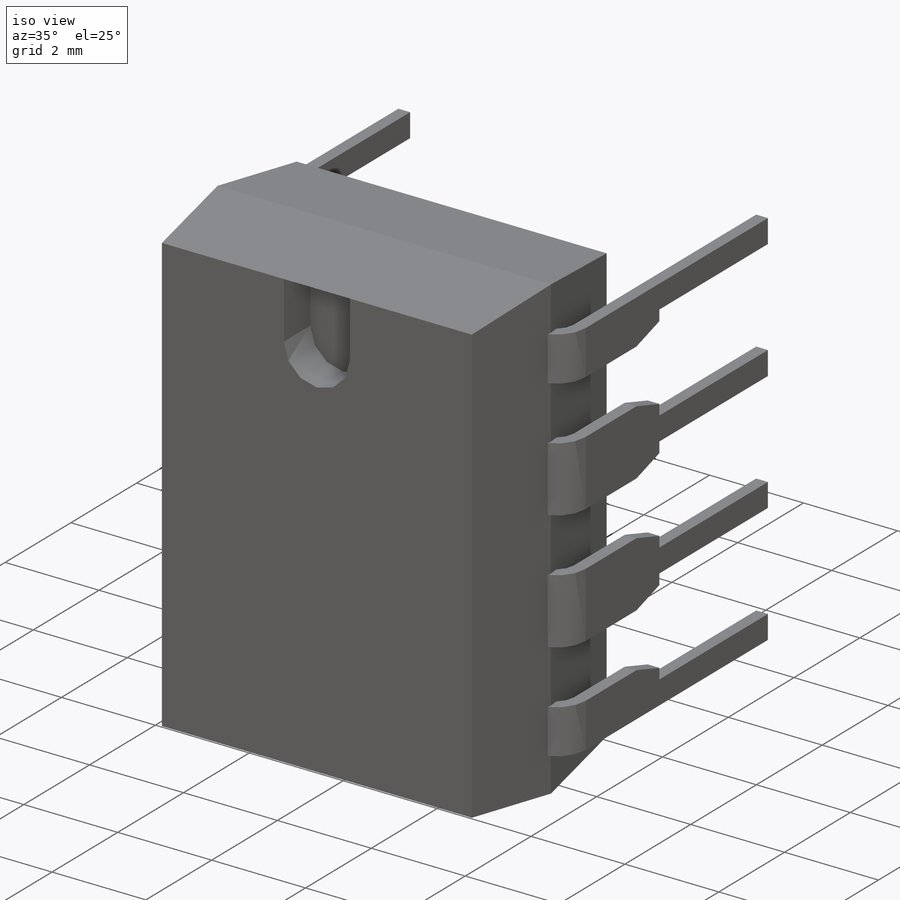
[diagram: iso view]
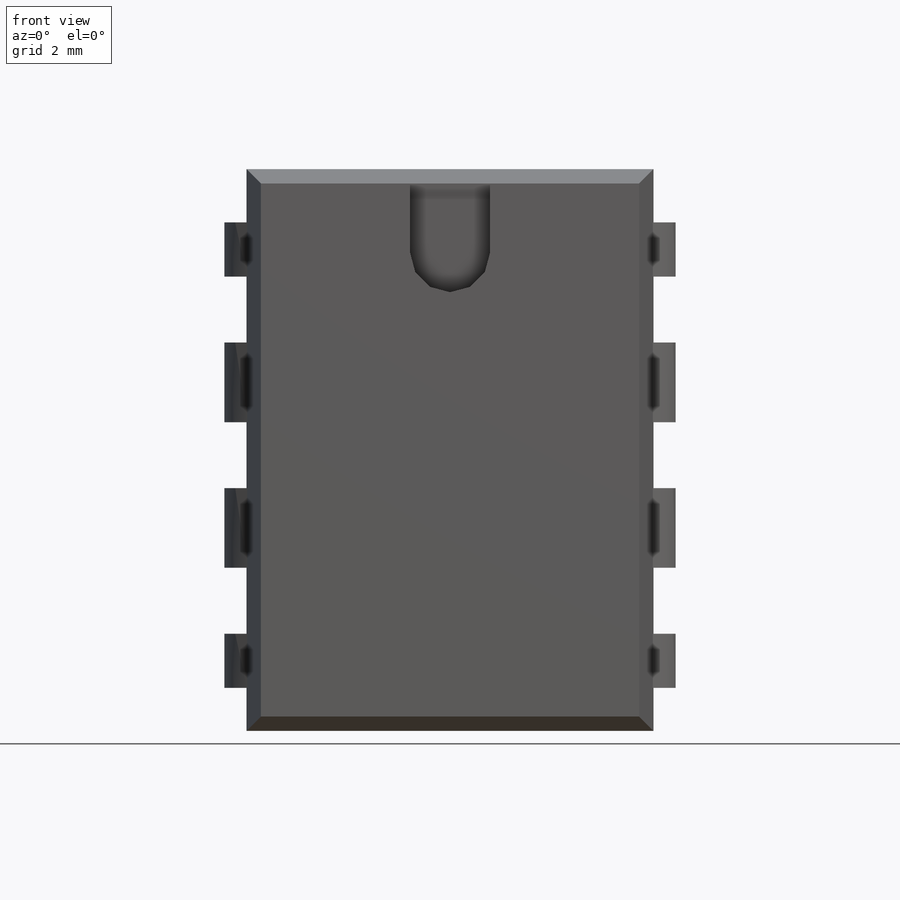
[diagram: front view]
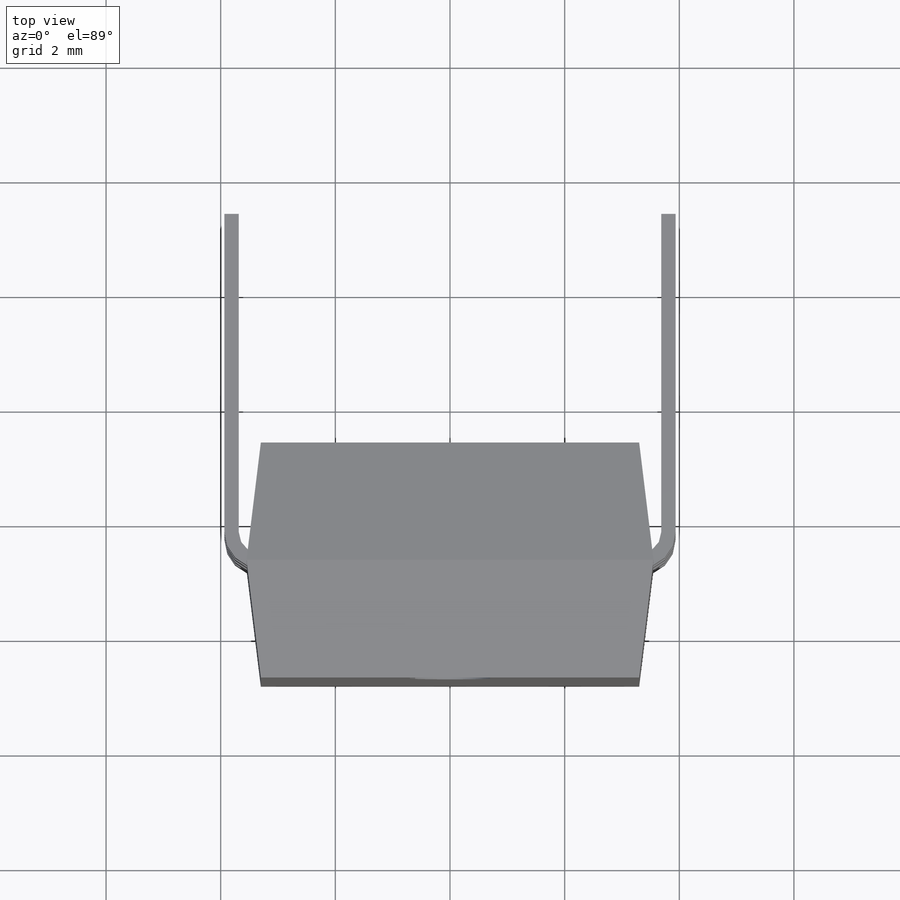
[diagram: top view]
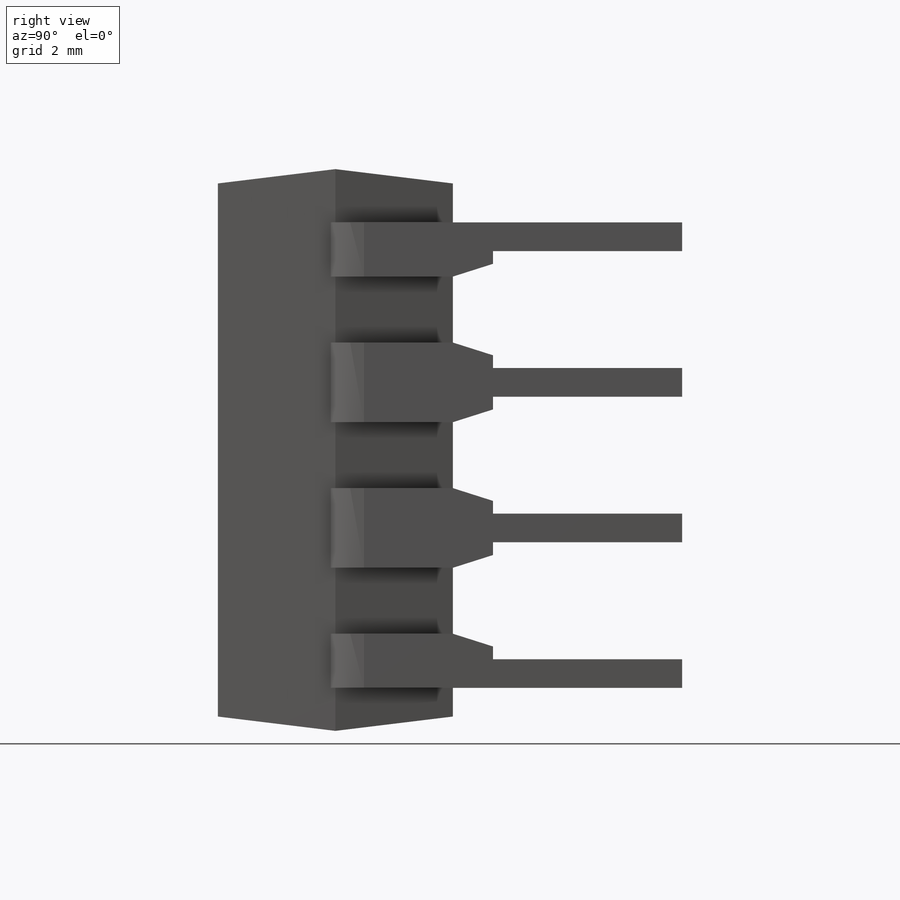
[diagram: right view]
SOLIDWORKS PART (.sldprt)
format: sldprt  version: not decoded by parser v0  size: 442,368 bytes
history: native  units: mm
features: sketch x11, cut_extrude x6, material x1, extrude x1, plane x1, sweep x1, mirror x1, pattern_linear x1 (+12 scaffold rows collapsed)
feature tree (35):
  scaffold x12  (default folders/planes/origin — collapsed)
  material  "Material <not specified>"
  sketch  "Sketch1"  dims[F=7.1mm i=4.8mm a1=0.7mm D4=6.6mm D1=0.7mm D2=4.8mm]
  extrude  "Basic Shape"  Depth=9.8mm D=9.8mm
  sketch  "Sketch2"  dims[D1=0.25mm]
  cut_extrude  "Side Profile1"  [1 undecoded]
  sketch  "Sketch3"
  cut_extrude  "Side Profile2"  [1 undecoded]
  sketch  "First Pin Location"  dims[Z=1.0mm]
  plane  "First Pin Plane"
  sketch  "Sketch4"  dims[c1.D1=1.4mm c1.D2=1.3mm c2.D1=1.2mm c2.D2=1.4mm]
  cut_extrude  "Location Mark"  Depth=0.8mm
  sketch  "Sketch5"  dims[c1.D3=0.5mm c1.D4=0.5mm c2.D3=0.5mm c2.D2=0.5mm c2.D1=8.5mm c3.D2=3.3mm c3.D1=7.62mm c4.D2=3.3mm c4.D3=3.3mm]
  sketch  "Sketch6"  dims[D1=1.39mm D2=0.25mm]
  sweep  "First Pin"
  sketch  "Sketch7"  dims[D1=0.5mm]
  cut_extrude  "Pin Relief"  [1 undecoded]
  mirror  "Opp Pin"
  pattern_linear  "Remaining Pins"  Count1=4 Count2=1 Spacing1=2.54mm Spacing2=50mm
  sketch  "Sketch9"  dims[D1=0.0mm D2=0.0mm]
  cut_extrude  "Pin Shape1"  [1 undecoded]
  sketch  "Sketch10"  dims[c1.D1=0.0mm c1.D2=0.0mm c2.D1=0.0mm c2.D2=0.0mm c3.D1=0.0mm c3.D3=0.0mm]
  cut_extrude  "Pin Shape2"  [1 undecoded]
  sketch  "Component_Outline"
decode coverage: 12 of 21 modeling features carry decoded parameters
note: 5 parameter values undecoded
summary: no parameter record found for 5 features
note: suppression state not decoded; provenance and decode notes live in map.json
